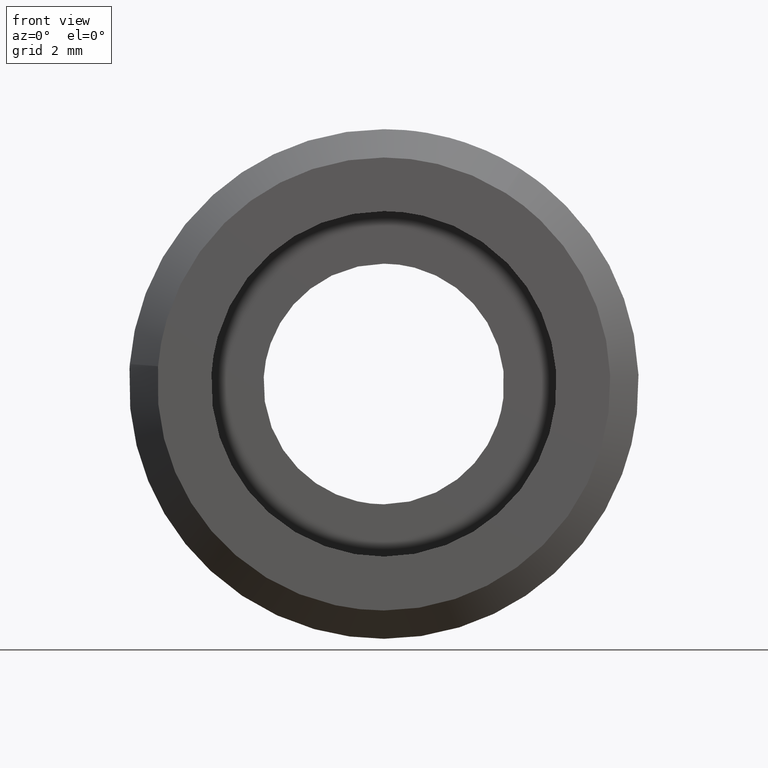
[diagram: clean part render]
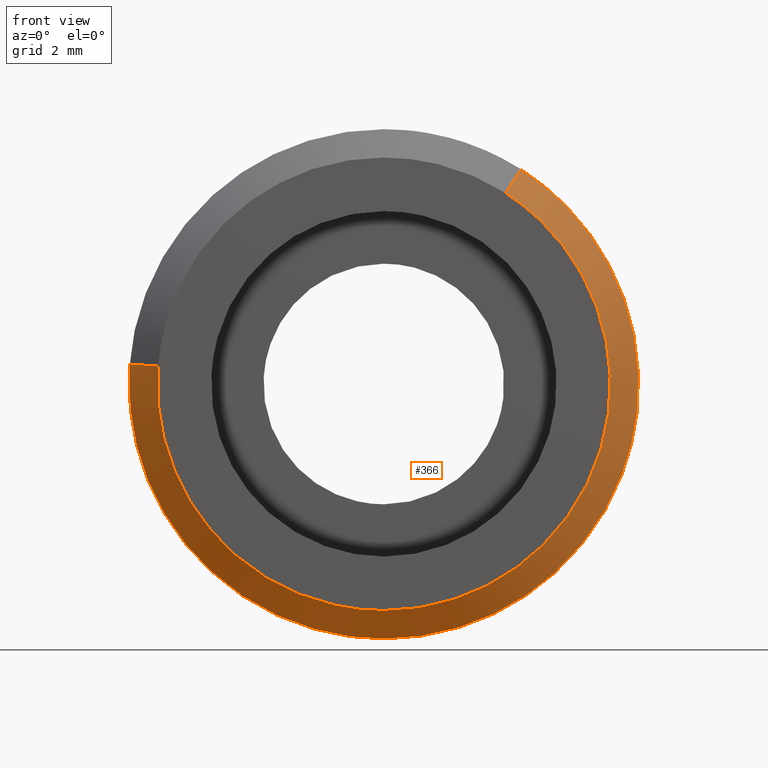
[diagram: same view with one face highlighted and labeled with its STEP entity id]
A machine part, front view. The second image highlights one B-rep face of the part: STEP entity #366.
In plain terms, the highlighted face is a freeform B-spline surface patch.
Its self-contained STEP definition (entity closure, byte-faithful):
#230=CARTESIAN_POINT('',(4.289354564762842,-3.025000000000000,6.723235748533082));
#231=CARTESIAN_POINT('',(8.326092024610627,-3.025000000000000,4.147839183876674));
#232=CARTESIAN_POINT('',(7.950405518119024,-3.025000000000000,-0.625710484223837));
#233=CARTESIAN_POINT('',(7.324695033895187,-3.025000000000001,-8.576116002342861));
#234=CARTESIAN_POINT('',(-0.625710484223836,-3.025000000000000,-7.950405518119023));
#235=CARTESIAN_POINT('',(-8.576116002342859,-3.025000000000001,-7.324695033895186));
#236=CARTESIAN_POINT('',(-7.950405518119022,-3.025000000000000,0.625710484223837));
#237=CARTESIAN_POINT('',(4.854439705422159,-1.974375000000000,7.608963557060754));
#238=CARTESIAN_POINT('',(9.422982200470841,-1.974375000000000,4.694280904481501));
#239=CARTESIAN_POINT('',(8.997802265735130,-1.974375000000000,-0.708142395983779));
#240=CARTESIAN_POINT('',(8.289659869751350,-1.974375000000000,-9.705944661718908));
#241=CARTESIAN_POINT('',(-0.708142395983778,-1.974375000000000,-8.997802265735128));
#242=CARTESIAN_POINT('',(-9.705944661718906,-1.974375000000000,-8.289659869751349));
#243=CARTESIAN_POINT('',(-8.997802265735126,-1.974375000000000,0.708142395983779));
#251=(BOUNDED_SURFACE()B_SPLINE_SURFACE(2,1,((#230,#237),(#231,#238),(#232,#239),(#233,#240),(#234,#241),(#235,#242),(#236,#243)),.UNSPECIFIED.,.F.,.F.,.U.)B_SPLINE_SURFACE_WITH_KNOTS((3,2,2,3),(2,2),(0.0,10.168818980897621,25.122964541041188,40.077110101184743),(0.0,1.0),.UNSPECIFIED.)GEOMETRIC_REPRESENTATION_ITEM()RATIONAL_B_SPLINE_SURFACE(((0.872532871172386,0.872532871172386),(0.800832611206852,0.800832611206852),(1.0,1.0),(0.707106781186548,0.707106781186548),(1.0,1.0),(0.707106781186548,0.707106781186548),(1.0,1.0)))REPRESENTATION_ITEM('')SURFACE());
#252=CARTESIAN_POINT('',(8.937086413742874,-1.999999999999977,-1.062302420810438));
#253=VERTEX_POINT('',#252);
#254=CARTESIAN_POINT('',(4.840657141017076,-1.999999999999926,7.587360439778891));
#255=VERTEX_POINT('',#254);
#256=CARTESIAN_POINT('',(8.937086413742874,-1.999999999999977,-1.062302420810437));
#257=CARTESIAN_POINT('',(9.0,-2.000000000000000,-0.533014201234475));
#258=CARTESIAN_POINT('',(9.000000000000002,-2.0,0.0));
#259=CARTESIAN_POINT('',(9.000000000000004,-2.000000000000000,4.933742904130543));
#260=CARTESIAN_POINT('',(4.840657141017076,-1.999999999999927,7.587360439778891));
#268=(BOUNDED_CURVE()B_SPLINE_CURVE(2,(#256,#257,#258,#259,#260),.UNSPECIFIED.,.F.,.U.)B_SPLINE_CURVE_WITH_KNOTS((3,2,3),(0.229562581136241,0.250000000000000,0.407950112627521),.UNSPECIFIED.)CURVE()GEOMETRIC_REPRESENTATION_ITEM()RATIONAL_B_SPLINE_CURVE((0.956026965128767,0.976056074419019,1.0,0.814949932402312,0.863729296954906))REPRESENTATION_ITEM(''));
#269=EDGE_CURVE('',#253,#255,#268,.T.);
#270=ORIENTED_EDGE('',*,*,#269,.T.);
#271=CARTESIAN_POINT('',(4.302800969062561,-2.999999999999947,6.744311960514219));
#272=VERTEX_POINT('',#271);
#273=CARTESIAN_POINT('',(4.302800969062561,-2.999999999999947,6.744311960514219));
#274=CARTESIAN_POINT('',(4.840657141017076,-1.999999999999926,7.587360439778891));
#275=QUASI_UNIFORM_CURVE('',1,(#273,#274),.UNSPECIFIED.,.F.,.U.);
#276=EDGE_CURVE('',#272,#255,#275,.T.);
#277=ORIENTED_EDGE('',*,*,#276,.F.);
#278=CARTESIAN_POINT('',(9.184548E-016,-3.0,-7.999990000000000));
#279=VERTEX_POINT('',#278);
#280=CARTESIAN_POINT('',(9.184548E-016,-3.0,-7.999990000000000));
#281=CARTESIAN_POINT('',(7.999990000000002,-3.0,-7.999990000000001));
#282=CARTESIAN_POINT('',(7.999990000000002,-3.0,0.0));
#283=CARTESIAN_POINT('',(7.999990000000002,-3.0,4.385543766179844));
#284=CARTESIAN_POINT('',(4.302800969062561,-2.999999999999947,6.744311960514219));
#292=(BOUNDED_CURVE()B_SPLINE_CURVE(2,(#280,#281,#282,#283,#284),.UNSPECIFIED.,.F.,.U.)B_SPLINE_CURVE_WITH_KNOTS((3,2,3),(0.0,0.250000000000000,0.407950112627532),.UNSPECIFIED.)CURVE()GEOMETRIC_REPRESENTATION_ITEM()RATIONAL_B_SPLINE_CURVE((1.0,0.707106781186548,1.0,0.814949932402299,0.863729296954913))REPRESENTATION_ITEM(''));
#293=EDGE_CURVE('',#279,#272,#292,.T.);
#294=ORIENTED_EDGE('',*,*,#293,.F.);
#295=CARTESIAN_POINT('',(-7.975328700692701,-2.999999999997446,0.627671981251446));
#296=VERTEX_POINT('',#295);
#297=CARTESIAN_POINT('',(-7.975328700692701,-2.999999999997446,0.627671981251446));
#298=CARTESIAN_POINT('',(-7.999989999999999,-3.000000000000000,0.314320463179817));
#299=CARTESIAN_POINT('',(-7.999989999999999,-3.0,0.0));
#300=CARTESIAN_POINT('',(-7.999990000000000,-3.0,-7.999990000000001));
#301=CARTESIAN_POINT('',(9.184548E-016,-3.0,-7.999990000000000));
#309=(BOUNDED_CURVE()B_SPLINE_CURVE(2,(#297,#298,#299,#300,#301),.UNSPECIFIED.,.F.,.U.)B_SPLINE_CURVE_WITH_KNOTS((3,2,3),(0.736331300631931,0.750000000000000,1.0),.UNSPECIFIED.)CURVE()GEOMETRIC_REPRESENTATION_ITEM()RATIONAL_B_SPLINE_CURVE((0.969723356170071,0.983986122580372,1.0,0.707106781186548,1.0))REPRESENTATION_ITEM(''));
#310=EDGE_CURVE('',#296,#279,#309,.T.);
#311=ORIENTED_EDGE('',*,*,#310,.F.);
#312=CARTESIAN_POINT('',(-8.972256003598357,-1.999999999999478,0.706131861554639));
#313=VERTEX_POINT('',#312);
#314=CARTESIAN_POINT('',(-7.975328700692701,-2.999999999997446,0.627671981251446));
#315=CARTESIAN_POINT('',(-8.972256003598357,-1.999999999999478,0.706131861554639));
#316=QUASI_UNIFORM_CURVE('',1,(#314,#315),.UNSPECIFIED.,.F.,.U.);
#317=EDGE_CURVE('',#296,#313,#316,.T.);
#318=ORIENTED_EDGE('',*,*,#317,.T.);
#319=CARTESIAN_POINT('',(-8.983213382410629,-1.999999999999985,0.549433641187123));
#320=VERTEX_POINT('',#319);
#321=CARTESIAN_POINT('',(-8.972256003598357,-1.999999999999478,0.706131861554639));
#322=CARTESIAN_POINT('',(-8.978418449350123,-2.000000000000000,0.627830564151339));
#323=CARTESIAN_POINT('',(-8.983213382410630,-1.999999999999985,0.549433641187123));
#331=(BOUNDED_CURVE()B_SPLINE_CURVE(2,(#321,#322,#323),.UNSPECIFIED.,.F.,.U.)B_SPLINE_CURVE_WITH_KNOTS((3,3),(0.736331300632614,0.739333023987528),.UNSPECIFIED.)CURVE()GEOMETRIC_REPRESENTATION_ITEM()RATIONAL_B_SPLINE_CURVE((0.969723356171497,0.972855539994323,0.976072174005725))REPRESENTATION_ITEM(''));
#332=EDGE_CURVE('',#313,#320,#331,.T.);
#333=ORIENTED_EDGE('',*,*,#332,.T.);
#334=CARTESIAN_POINT('',(9.184548E-016,-2.0,-9.0));
#335=VERTEX_POINT('',#334);
#336=CARTESIAN_POINT('',(-8.983213382410630,-1.999999999999985,0.549433641187123));
#337=CARTESIAN_POINT('',(-8.999999999999998,-2.000000000000000,0.274973257867300));
#338=CARTESIAN_POINT('',(-8.999999999999998,-2.0,0.0));
#339=CARTESIAN_POINT('',(-8.999999999999998,-2.0,-9.0));
#340=CARTESIAN_POINT('',(9.184548E-016,-2.0,-9.0));
#348=(BOUNDED_CURVE()B_SPLINE_CURVE(2,(#336,#337,#338,#339,#340),.UNSPECIFIED.,.F.,.U.)B_SPLINE_CURVE_WITH_KNOTS((3,2,3),(0.739333023987528,0.750000000000000,1.0),.UNSPECIFIED.)CURVE()GEOMETRIC_REPRESENTATION_ITEM()RATIONAL_B_SPLINE_CURVE((0.976072174005725,0.987502860242804,1.0,0.707106781186547,1.0))REPRESENTATION_ITEM(''));
#349=EDGE_CURVE('',#320,#335,#348,.T.);
#350=ORIENTED_EDGE('',*,*,#349,.T.);
#351=CARTESIAN_POINT('',(9.184548E-016,-2.0,-9.0));
#352=CARTESIAN_POINT('',(7.993575859671106,-2.000000000000000,-9.000000000000002));
#353=CARTESIAN_POINT('',(8.937086413742874,-1.999999999999977,-1.062302420810437));
#361=(BOUNDED_CURVE()B_SPLINE_CURVE(2,(#351,#352,#353),.UNSPECIFIED.,.F.,.U.)B_SPLINE_CURVE_WITH_KNOTS((3,3),(0.0,0.229562581136241),.UNSPECIFIED.)CURVE()GEOMETRIC_REPRESENTATION_ITEM()RATIONAL_B_SPLINE_CURVE((1.0,0.731050706767529,0.956026965128767))REPRESENTATION_ITEM(''));
#362=EDGE_CURVE('',#335,#253,#361,.T.);
#363=ORIENTED_EDGE('',*,*,#362,.T.);
#364=EDGE_LOOP('',(#270,#277,#294,#311,#318,#333,#350,#363));
#365=FACE_OUTER_BOUND('',#364,.T.);
#366=ADVANCED_FACE('',(#365),#251,.T.);